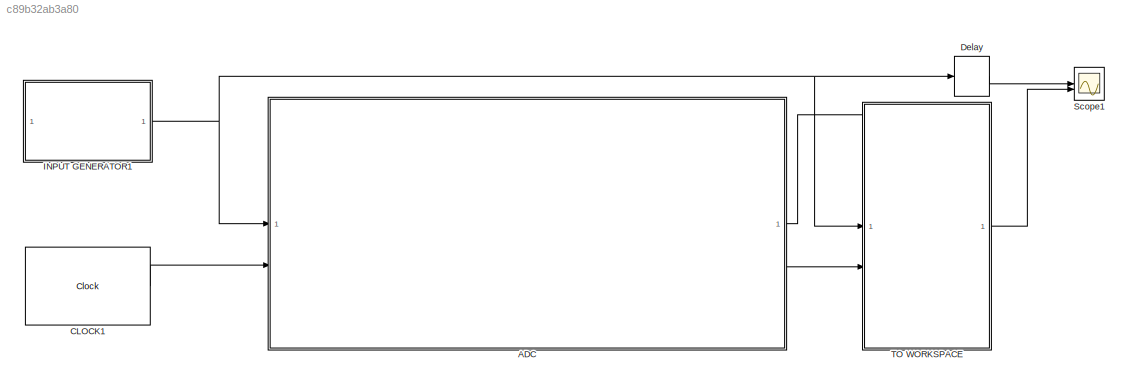
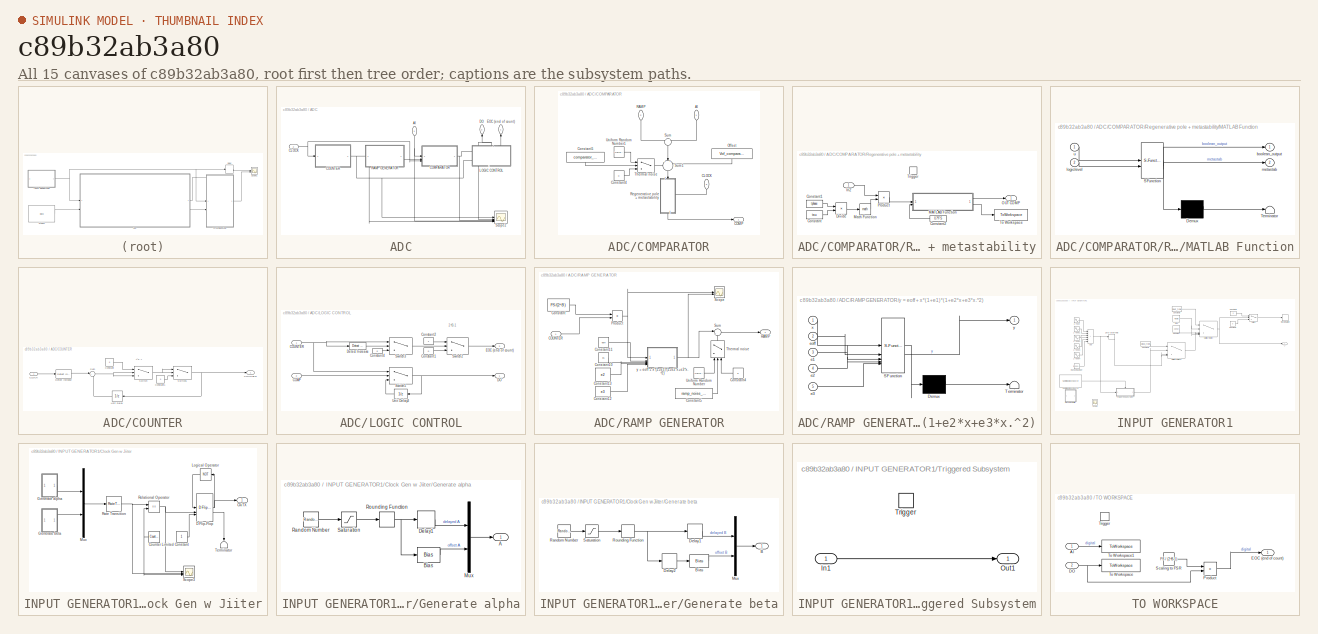
[diagram: thumbnail index - all 15 canvases of the model, root first then tree order]
MODEL slx_c89b32ab3a80
KIND model
CONFIG AbsTol = auto
CONFIG EnableMultiTasking = off
CONFIG FixedStep = (1/fclk)/OSR
CONFIG MaxStep = auto
CONFIG MinStep = auto
CONFIG RelTol = 1e-12
CONFIG SampleTimeConstraint = Unconstrained
CONFIG SolverName = VariableStepAuto
CONFIG StartTime = 0.0
CONFIG StopTime = simtime
WORKSPACE source: mxarray member
WORKSPACE Delay_242 = [0 0 0]
WORKSPACE ENOB_242 = -inf
WORKSPACE FUNDF_242 = [nan nan]
WORKSPACE FUNDX_242 = [-inf -inf]
WORKSPACE GainError_249 = [1.75 0.02734375 2.734375]
WORKSPACE IMODF_242 = [nan nan]
WORKSPACE IMODX_242 = [nan nan]
WORKSPACE NoiseFloor_242 = -54.2607794062
WORKSPACE OIP3_242 = nan
WORKSPACE OffsetError_249 = [0.74921875 0.0117065429687 1.17065429687]
WORKSPACE SFDR_242 = inf
WORKSPACE SINAD_242 = -inf
WORKSPACE SNR_242 = -inf
WORKSPACE THD_242 = nan
WORKSPACE best_linear_fit_249 = [0.0225228416502 0.00504547332987]
WORKSPACE bf_dnl_249 = [0.503760731487 -0.129615618295 -0.129615618295 0.0703843817053 -0.0296156182947 -0.279615618295 0.220384381705 -0.129615618295 -0.0296156182947 0.220384381705 -0.0796156182947 -0.129615618295 ... (64 elements, 1x64)]
WORKSPACE bf_inl_249 = [0 0.503760731487 0.374145113192 0.244529494898 0.314913876603 0.285298258308 0.00568264001369 0.226067021719 0.0964514034243 0.0668357851297 0.287220166835 0.20760454854 ... (64 elements, 1x64)]
WORKSPACE delay_242 = [0 0 0]
WORKSPACE ep_dnl_249 = [-8.24737104007e-15 -0.128225806452 -0.128225806452 0.0717741935484 -0.0282258064516 -0.278225806452 0.221774193548 -0.128225806452 -0.0282258064516 0.221774193548 -0.0782258064516 -0.128225806452 ... (64 elements, 1x64)]
WORKSPACE ep_inl_249 = [0 -8.24737104007e-15 -0.128225806452 -0.256451612903 -0.184677419355 -0.212903225806 -0.491129032258 -0.26935483871 -0.397580645161 -0.425806451613 -0.204032258065 -0.282258064516 ... (64 elements, 1x64)]
WORKSPACE nbits_249 = 6
WORKSPACE tcr_249: object (value not decoded)
WORKSPACE v_high_249 = 1.4
WORKSPACE v_low_249 = 0
BLOCK [SubSystem] ADC
BLOCK [Inport] ADC/AI
  NameLocation = left
BLOCK [Inport] ADC/CLOCK
  Port = 2
BLOCK [SubSystem] ADC/COMPARATOR
BLOCK [Inport] ADC/COMPARATOR/AI
  NameLocation = left
BLOCK [Inport] ADC/COMPARATOR/CLOCK
  NameLocation = left
  Port = 3
BLOCK [Outport] ADC/COMPARATOR/COMP
BLOCK [Constant] ADC/COMPARATOR/Constant4
  Value = 0
BLOCK [Constant] ADC/COMPARATOR/Constant5
  NameLocation = left
  Value = comparator_noise_state
BLOCK [Constant] ADC/COMPARATOR/Offset
  NameLocation = top
  Value = Vof_comparator
BLOCK [Inport] ADC/COMPARATOR/RAMP
  NameLocation = left
  Port = 2
BLOCK [SubSystem] ADC/COMPARATOR/Regenerative pole + metastability
  NameLocation = left
  TreatAsAtomicUnit = on
BLOCK [Constant] ADC/COMPARATOR/Regenerative pole + metastability/Constant
  Value = tau
BLOCK [Constant] ADC/COMPARATOR/Regenerative pole + metastability/Constant1
  Value = tphase
BLOCK [Constant] ADC/COMPARATOR/Regenerative pole + metastability/Constant2
  NameLocation = top
  Value = 0.7*FS
BLOCK [Product] ADC/COMPARATOR/Regenerative pole + metastability/Divide
  Inputs = */
BLOCK [Inport] ADC/COMPARATOR/Regenerative pole + metastability/In2
BLOCK [SubSystem] ADC/COMPARATOR/Regenerative pole + metastability/MATLAB Function
  ErrorFcn = Stateflow.Translate.translate
  PermitHierarchicalResolution = ExplicitOnly
  SFBlockType = MATLAB Function
  TreatAsAtomicUnit = on
BLOCK [Demux] ADC/COMPARATOR/Regenerative pole + metastability/MATLAB Function/ Demux 
  Outputs = 1
BLOCK [S-Function] ADC/COMPARATOR/Regenerative pole + metastability/MATLAB Function/ SFunction 
  EnableBusSupport = on
  FunctionName = sf_sfun
  PortCounts = [2 3]
  SFcnIsStateOwnerBlock = off
  SFunctionDeploymentMode = off
  Tag = Stateflow S-Function 1
BLOCK [Terminator] ADC/COMPARATOR/Regenerative pole + metastability/MATLAB Function/ Terminator 
BLOCK [Outport] ADC/COMPARATOR/Regenerative pole + metastability/MATLAB Function/boolean_output
BLOCK [Inport] ADC/COMPARATOR/Regenerative pole + metastability/MATLAB Function/logiclevel
  Port = 2
BLOCK [Outport] ADC/COMPARATOR/Regenerative pole + metastability/MATLAB Function/metastab
  Port = 2
BLOCK [Inport] ADC/COMPARATOR/Regenerative pole + metastability/MATLAB Function/u
BLOCK [Math] ADC/COMPARATOR/Regenerative pole + metastability/Math Function
BLOCK [Outport] ADC/COMPARATOR/Regenerative pole + metastability/OUT COMP
BLOCK [Product] ADC/COMPARATOR/Regenerative pole + metastability/Product
BLOCK [ToWorkspace] ADC/COMPARATOR/Regenerative pole + metastability/To Workspace
  FixptAsFi = on
  MaxDataPoints = inf
  SampleTime = -1
  VariableName = metastab
BLOCK [TriggerPort] ADC/COMPARATOR/Regenerative pole + metastability/Trigger
  StatesWhenEnabling = held
  VariantControl = (inherit)
BLOCK [Sum] ADC/COMPARATOR/Sum
  Inputs = +|-
  NameLocation = left
BLOCK [Sum] ADC/COMPARATOR/Sum1
  Inputs = +|+|+
  NameLocation = left
BLOCK [Switch] ADC/COMPARATOR/Thermal noise
  Criteria = u2 > Threshold
  InputSameDT = off
  SaturateOnIntegerOverflow = off
BLOCK [UniformRandomNumber] ADC/COMPARATOR/Uniform Random Number1
  Maximum = Vnoise_comparator
  Minimum = -Vnoise_comparator
  SampleTime = 1/(2*fclk)
  Seed = SEED2
BLOCK [SubSystem] ADC/COUNTER
BLOCK [Inport] ADC/COUNTER/CLOCK
BLOCK [Outport] ADC/COUNTER/COUNTER
BLOCK [Constant] ADC/COUNTER/Constant
  Value = 0
BLOCK [Constant] ADC/COUNTER/Constant1
  Value = 0
BLOCK [Reference] ADC/COUNTER/Detect Increase  REF=simulink/Logic and Bit
Operations/Detect
Increase
  SourceBlock = simulink/Logic and Bit\nOperations/Detect\nIncrease
  SourceType = Detect Increase
BLOCK [Sum] ADC/COUNTER/Sum
  Inputs = |++
BLOCK [Switch] ADC/COUNTER/Switch
  Criteria = u2 > Threshold
  InputSameDT = off
  SaturateOnIntegerOverflow = off
  Threshold = 2^B-1
BLOCK [Switch] ADC/COUNTER/Switch1
  InputSameDT = off
  SaturateOnIntegerOverflow = off
BLOCK [UnitDelay] ADC/COUNTER/Unit Delay
  HasFrameUpgradeWarning = on
  InitialCondition = -1
  SampleTime = -1
BLOCK [Outport] ADC/DO
  NameLocation = right
  Port = 2
BLOCK [Outport] ADC/EOC (end of count)
  NameLocation = right
BLOCK [SubSystem] ADC/LOGIC CONTROL
  PortSchema = {"entries":[{"content":{"sides":[{"content":{},"type":"ConnectorPlacement.EquallySpacedRectSide","uuid":"4dac15f4-60b2-47ff-be01-608d4a6ba830"},{"content":{"connectorIds":["Out1","Out2"],"side":"RIGHT"},"type":"ConnectorPlacement.EquallySpacedRectSide","uuid":"a37273df-03c3-4eb4-bc46-6efba4b33bab"},{"content":{"connectorIds":["In1","In2"],"side":"TOP"},"type":"ConnectorPlacement.EquallySpacedRectS...<+236ch>
BLOCK [Inport] ADC/LOGIC CONTROL/COMP
  Port = 2
BLOCK [Inport] ADC/LOGIC CONTROL/COUNTER
BLOCK [Constant] ADC/LOGIC CONTROL/Constant1
  Value = 0
BLOCK [Constant] ADC/LOGIC CONTROL/Constant2
BLOCK [Constant] ADC/LOGIC CONTROL/Constant4
  Value = 0
BLOCK [Outport] ADC/LOGIC CONTROL/DO
BLOCK [Reference] ADC/LOGIC CONTROL/Detect Increase  REF=simulink/Logic and Bit
Operations/Detect
Increase
  SourceBlock = simulink/Logic and Bit\nOperations/Detect\nIncrease
  SourceType = Detect Increase
BLOCK [Outport] ADC/LOGIC CONTROL/EOC (end of count)
  Port = 2
BLOCK [Switch] ADC/LOGIC CONTROL/Switch2
  Criteria = u2 > Threshold
  InputSameDT = off
  SaturateOnIntegerOverflow = off
  Threshold = 2^B-2
BLOCK [Switch] ADC/LOGIC CONTROL/Switch3
  Criteria = u2 > Threshold
  InputSameDT = off
  SaturateOnIntegerOverflow = off
BLOCK [Switch] ADC/LOGIC CONTROL/Switch5
  Criteria = u2 ~= 0
  InputSameDT = off
  SaturateOnIntegerOverflow = off
BLOCK [UnitDelay] ADC/LOGIC CONTROL/Unit Delay3
  HasFrameUpgradeWarning = on
  SampleTime = -1
BLOCK [SubSystem] ADC/RAMP GENERATOR
BLOCK [Inport] ADC/RAMP GENERATOR/COUNTER
BLOCK [Constant] ADC/RAMP GENERATOR/Constant
  Value = FS/(2^B)
BLOCK [Constant] ADC/RAMP GENERATOR/Constant10
  Value = e1
BLOCK [Constant] ADC/RAMP GENERATOR/Constant11
  Value = eoff
BLOCK [Constant] ADC/RAMP GENERATOR/Constant12
  Value = e3
BLOCK [Constant] ADC/RAMP GENERATOR/Constant13
  Value = e2
BLOCK [Constant] ADC/RAMP GENERATOR/Constant4
  NameLocation = top
  Value = 0
BLOCK [Constant] ADC/RAMP GENERATOR/Constant5
  Value = ramp_noise_state
BLOCK [Product] ADC/RAMP GENERATOR/Product
BLOCK [Outport] ADC/RAMP GENERATOR/RAMP
BLOCK [Scope] ADC/RAMP GENERATOR/Scope
  Commented = on
  Floating = off
  NumInputPorts = 2
  ScopeSpecificationString = Simulink.scopes.TimeScopeBlockCfg('CurrentConfiguration', extmgr.ConfigurationSet(extmgr.Configuration('Core','General UI',true,'FigureColor',[1 1 1]),extmgr.Configuration('Core','Source UI',true),extmgr.Configuration('Sources','WiredSimulink',true,'DataLoggingVariableName','ScopeData1'),extmgr.Configuration('Visuals','Time Domain',true,'SerializedDisplays',{struct('MinYLimReal','-0.0162','MaxYLim...<+1847ch>
BLOCK [Sum] ADC/RAMP GENERATOR/Sum
  Inputs = |++
BLOCK [Switch] ADC/RAMP GENERATOR/Thermal noise
  Criteria = u2 > Threshold
  InputSameDT = off
  NameLocation = right
  SaturateOnIntegerOverflow = off
BLOCK [UniformRandomNumber] ADC/RAMP GENERATOR/Uniform Random Number
  Maximum = Vnoise_ramp
  Minimum = -Vnoise_ramp
  SampleTime = 1/(2*fclk)
  Seed = SEED1
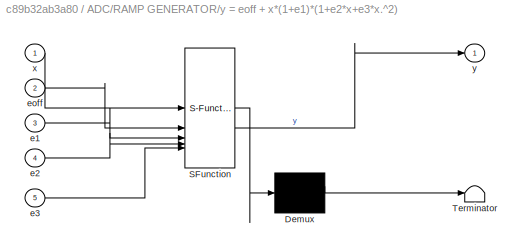
BLOCK [SubSystem] ADC/RAMP GENERATOR/y = eoff + x*(1+e1)*(1+e2*x+e3*x.^2)
  ErrorFcn = Stateflow.Translate.translate
  PermitHierarchicalResolution = ExplicitOnly
  SFBlockType = MATLAB Function
BLOCK [Demux] ADC/RAMP GENERATOR/y = eoff + x*(1+e1)*(1+e2*x+e3*x.^2)/ Demux 
  Outputs = 1
BLOCK [S-Function] ADC/RAMP GENERATOR/y = eoff + x*(1+e1)*(1+e2*x+e3*x.^2)/ SFunction 
  EnableBusSupport = on
  FunctionName = sf_sfun
  PortCounts = [5 2]
  SFcnIsStateOwnerBlock = off
  SFunctionDeploymentMode = off
  Tag = Stateflow S-Function 2
BLOCK [Terminator] ADC/RAMP GENERATOR/y = eoff + x*(1+e1)*(1+e2*x+e3*x.^2)/ Terminator 
BLOCK [Inport] ADC/RAMP GENERATOR/y = eoff + x*(1+e1)*(1+e2*x+e3*x.^2)/e1
  Port = 3
BLOCK [Inport] ADC/RAMP GENERATOR/y = eoff + x*(1+e1)*(1+e2*x+e3*x.^2)/e2
  Port = 4
BLOCK [Inport] ADC/RAMP GENERATOR/y = eoff + x*(1+e1)*(1+e2*x+e3*x.^2)/e3
  Port = 5
BLOCK [Inport] ADC/RAMP GENERATOR/y = eoff + x*(1+e1)*(1+e2*x+e3*x.^2)/eoff
  Port = 2
BLOCK [Inport] ADC/RAMP GENERATOR/y = eoff + x*(1+e1)*(1+e2*x+e3*x.^2)/x
BLOCK [Outport] ADC/RAMP GENERATOR/y = eoff + x*(1+e1)*(1+e2*x+e3*x.^2)/y
BLOCK [Scope] ADC/Scope2
  Commented = on
  Floating = off
  NumInputPorts = 5
  ScopeSpecificationString = Simulink.scopes.TimeScopeBlockCfg('CurrentConfiguration', extmgr.ConfigurationSet(extmgr.Configuration('Core','General UI',true,'FigureColor',[1 1 1]),extmgr.Configuration('Core','Source UI',true),extmgr.Configuration('Sources','WiredSimulink',true,'DataLoggingVariableName','ScopeData1'),extmgr.Configuration('Visuals','Time Domain',true,'PlotType','Stairs','SerializedDisplays',{struct('MinYLimReal...<+4341ch>
BLOCK [Reference] CLOCK1  REF=simulink_extras/Flip Flops/Clock
  SourceBlock = simulink_extras/Flip Flops/Clock
  SourceType = Digital clock
BLOCK [Delay] Delay
  DelayLength = 2^B-1
  InitialCondition = 0
  InputPortMap = u0
  SampleTime = 1/fclk
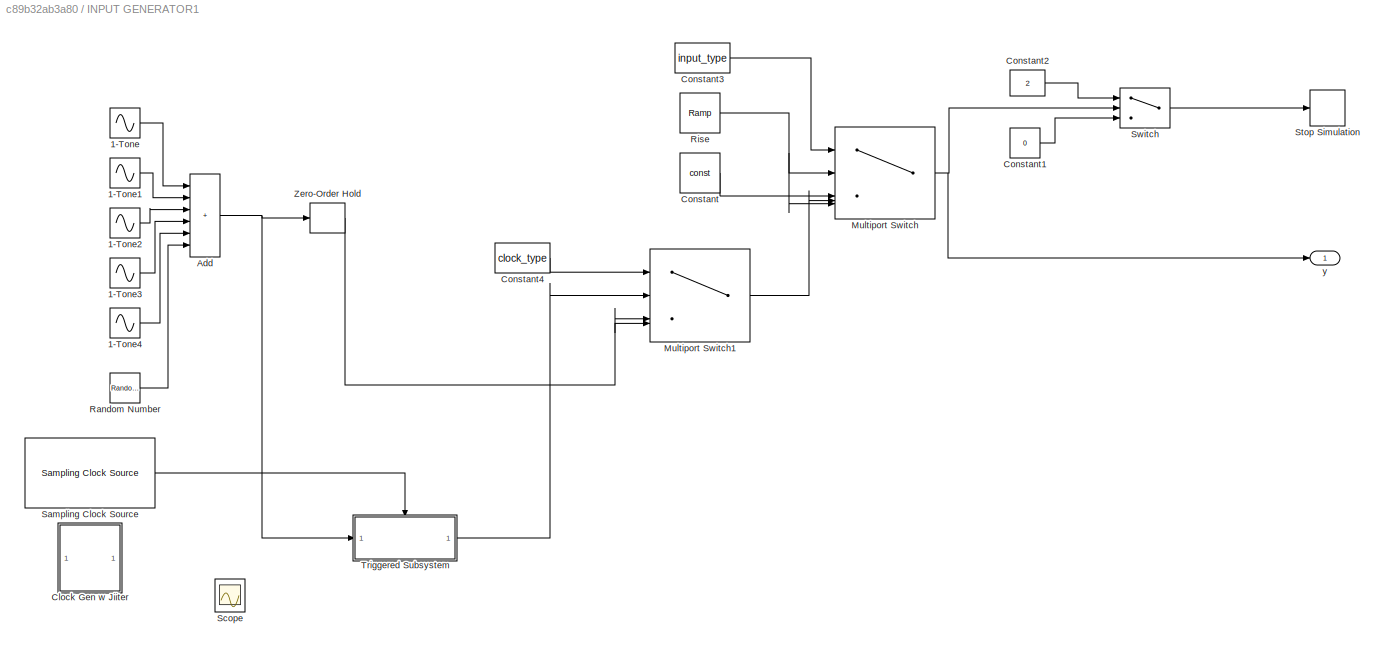
BLOCK [SubSystem] INPUT GENERATOR1
BLOCK [Sin] INPUT GENERATOR1/1-Tone
  Amplitude = Ain
  Bias = FS/2
  Frequency = 2 * pi * fin
  SampleTime = 0
BLOCK [Sin] INPUT GENERATOR1/1-Tone1
  Amplitude = Ah2
  Frequency = 2 * pi * 2*fin
  Phase = 2*pi*randn
  SampleTime = 0
BLOCK [Sin] INPUT GENERATOR1/1-Tone2
  Amplitude = Ah3
  Frequency = 2 * pi * 3*fin
  Phase = 2*pi*randn
  SampleTime = 0
BLOCK [Sin] INPUT GENERATOR1/1-Tone3
  Amplitude = Ah4
  Frequency = 2 * pi * 4*fin
  Phase = 2*pi*randn
  SampleTime = 0
BLOCK [Sin] INPUT GENERATOR1/1-Tone4
  Amplitude = Ah5
  Frequency = 2 * pi * 5*fin
  Phase = 2*pi*randn
  SampleTime = 0
BLOCK [Sum] INPUT GENERATOR1/Add
  IconShape = rectangular
  Inputs = ++++++
BLOCK [SubSystem] INPUT GENERATOR1/Clock Gen w Jiiter
  Commented = on
BLOCK [Outport] INPUT GENERATOR1/Clock Gen w Jiiter/ClkTX
BLOCK [Constant] INPUT GENERATOR1/Clock Gen w Jiiter/Constant
BLOCK [Reference] INPUT GENERATOR1/Clock Gen w Jiiter/Counter Limited  REF=simulink/Sources/Counter
Limited
  SourceBlock = simulink/Sources/Counter\nLimited
  SourceType = Counter Limited
BLOCK [Reference] INPUT GENERATOR1/Clock Gen w Jiiter/D Flip-Flop  REF=simulink_extras/Flip Flops/D Flip-Flop
  SourceBlock = simulink_extras/Flip Flops/D Flip-Flop
  SourceType = DFlipFlop
BLOCK [SubSystem] INPUT GENERATOR1/Clock Gen w Jiiter/Generate alpha
BLOCK [Outport] INPUT GENERATOR1/Clock Gen w Jiiter/Generate alpha/A
BLOCK [Bias] INPUT GENERATOR1/Clock Gen w Jiiter/Generate alpha/Bias
  Bias = OSR
  SaturateOnIntegerOverflow = off
BLOCK [Delay] INPUT GENERATOR1/Clock Gen w Jiiter/Generate alpha/Delay1
  DelayLength = 1
  InputPortMap = u0
  SampleTime = Ts
BLOCK [Mux] INPUT GENERATOR1/Clock Gen w Jiiter/Generate alpha/Mux
  DisplayOption = bar
  Inputs = 2
BLOCK [RandomNumber] INPUT GENERATOR1/Clock Gen w Jiiter/Generate alpha/Random Number
  Mean = mean_alpha*OSR
  SampleTime = Ts
  Seed = SEED1
  Variance = (sigma_alpha/Ts)*OSR
BLOCK [Rounding] INPUT GENERATOR1/Clock Gen w Jiiter/Generate alpha/Rounding Function
  Operator = round
BLOCK [Saturate] INPUT GENERATOR1/Clock Gen w Jiiter/Generate alpha/Saturation
  LowerLimit = (mean_alpha-2*sigma_alpha/Ts)*OSR
  UpperLimit = (mean_alpha+2*sigma_alpha/Ts)*OSR
BLOCK [SubSystem] INPUT GENERATOR1/Clock Gen w Jiiter/Generate beta
BLOCK [Outport] INPUT GENERATOR1/Clock Gen w Jiiter/Generate beta/B
BLOCK [Bias] INPUT GENERATOR1/Clock Gen w Jiiter/Generate beta/Bias
  Bias = -OSR
  SaturateOnIntegerOverflow = off
BLOCK [Delay] INPUT GENERATOR1/Clock Gen w Jiiter/Generate beta/Delay1
  DelayLength = 1
  InputPortMap = u0
  SampleTime = Ts
BLOCK [Delay] INPUT GENERATOR1/Clock Gen w Jiiter/Generate beta/Delay2
  InputPortMap = u0
  SampleTime = Ts
BLOCK [Mux] INPUT GENERATOR1/Clock Gen w Jiiter/Generate beta/Mux
  DisplayOption = bar
  Inputs = 2
BLOCK [RandomNumber] INPUT GENERATOR1/Clock Gen w Jiiter/Generate beta/Random Number
  Mean = mean_beta*OSR
  SampleTime = Ts
  Seed = 2342
  Variance = sigma_beta/Ts*OSR
BLOCK [Rounding] INPUT GENERATOR1/Clock Gen w Jiiter/Generate beta/Rounding Function
  Operator = round
BLOCK [Saturate] INPUT GENERATOR1/Clock Gen w Jiiter/Generate beta/Saturation
  LowerLimit = (mean_beta-2*sigma_beta/Ts)*OSR
  UpperLimit = (mean_beta+2*sigma_beta/Ts)*OSR
BLOCK [Logic] INPUT GENERATOR1/Clock Gen w Jiiter/Logical Operator
  AllPortsSameDT = off
  Inputs = 1
  NameLocation = top
  Operator = NOT
  OutDataTypeStr = boolean
BLOCK [Mux] INPUT GENERATOR1/Clock Gen w Jiiter/Mux
  DisplayOption = bar
  Inputs = 2
BLOCK [RateTransition] INPUT GENERATOR1/Clock Gen w Jiiter/Rate Transition
  OutPortSampleTime = Ts/OSR
BLOCK [RelationalOperator] INPUT GENERATOR1/Clock Gen w Jiiter/Relational Operator
  InputSameDT = off
  Operator = ==
  OutDataTypeStr = boolean
  RndMeth = Simplest
BLOCK [Scope] INPUT GENERATOR1/Clock Gen w Jiiter/Scope3
  Commented = on
  Floating = off
  NumInputPorts = 3
  ScopeSpecificationString = Simulink.scopes.TimeScopeBlockCfg('CurrentConfiguration', extmgr.ConfigurationSet(extmgr.Configuration('Core','General UI',true),extmgr.Configuration('Core','Source UI',true),extmgr.Configuration('Sources','WiredSimulink',true,'DataLoggingVariableName','ScopeData4'),extmgr.Configuration('Visuals','Time Domain',true,'SerializedDisplays',{struct('MinYLimReal','-83.625','MaxYLimReal','112.625','YLabe...<+1631ch>
BLOCK [Terminator] INPUT GENERATOR1/Clock Gen w Jiiter/Terminator
  NameLocation = left
BLOCK [Constant] INPUT GENERATOR1/Constant
  Value = const
BLOCK [Constant] INPUT GENERATOR1/Constant1
  Value = 0
BLOCK [Constant] INPUT GENERATOR1/Constant2
  Value = 2
BLOCK [Constant] INPUT GENERATOR1/Constant3
  Value = input_type
BLOCK [Constant] INPUT GENERATOR1/Constant4
  Value = clock_type
BLOCK [MultiPortSwitch] INPUT GENERATOR1/Multiport Switch
  DataPortForDefault = Additional data port
  DiagnosticForDefault = None
  InputSameDT = off
  SaturateOnIntegerOverflow = off
BLOCK [MultiPortSwitch] INPUT GENERATOR1/Multiport Switch1
  DataPortForDefault = Additional data port
  DiagnosticForDefault = None
  InputSameDT = off
  Inputs = 2
  SaturateOnIntegerOverflow = off
BLOCK [RandomNumber] INPUT GENERATOR1/Random Number
  SampleTime = 0
  Variance = noise_Vrms^2
BLOCK [Reference] INPUT GENERATOR1/Rise  REF=simulink/Sources/Ramp
  SourceBlock = simulink/Sources/Ramp
  SourceType = Ramp
BLOCK [Reference] INPUT GENERATOR1/Sampling Clock Source  REF=msbAdcFoundation/Sampling Clock Source
  SourceBlock = msbAdcFoundation/Sampling Clock Source
  SourceType = SamplingClockSource
BLOCK [Scope] INPUT GENERATOR1/Scope
  Commented = on
  Floating = off
  NumInputPorts = 2
  ScopeSpecificationString = Simulink.scopes.TimeScopeBlockCfg('CurrentConfiguration', extmgr.ConfigurationSet(extmgr.Configuration('Core','General UI',true),extmgr.Configuration('Core','Source UI',true),extmgr.Configuration('Sources','WiredSimulink',true,'DataLoggingVariableName','ScopeData2'),extmgr.Configuration('Visuals','Time Domain',true,'SerializedDisplays',{struct('MinYLimReal','-0.125','MaxYLimReal','1.125','YLabelRe...<+2120ch>
BLOCK [Stop] INPUT GENERATOR1/Stop Simulation
BLOCK [Switch] INPUT GENERATOR1/Switch
  Criteria = u2 > Threshold
  InputSameDT = off
  SaturateOnIntegerOverflow = off
  Threshold = final_value
BLOCK [SubSystem] INPUT GENERATOR1/Triggered Subsystem
  TreatAsAtomicUnit = on
BLOCK [Inport] INPUT GENERATOR1/Triggered Subsystem/In1
BLOCK [Outport] INPUT GENERATOR1/Triggered Subsystem/Out1
BLOCK [TriggerPort] INPUT GENERATOR1/Triggered Subsystem/Trigger
  StatesWhenEnabling = held
  VariantControl = (inherit)
BLOCK [ZeroOrderHold] INPUT GENERATOR1/Zero-Order Hold
  SampleTime = 1/fs
BLOCK [Outport] INPUT GENERATOR1/y
BLOCK [Scope] Scope1
  Commented = on
  Floating = off
  NumInputPorts = 2
  ScopeSpecificationString = Simulink.scopes.TimeScopeBlockCfg('CurrentConfiguration', extmgr.ConfigurationSet(extmgr.Configuration('Core','General UI',true),extmgr.Configuration('Core','Source UI',true),extmgr.Configuration('Sources','WiredSimulink',true,'DataLoggingVariableName','ScopeData1'),extmgr.Configuration('Visuals','Time Domain',true,'SerializedDisplays',{struct('MinYLimReal','-0.01161','MaxYLimReal','1.01607','YLab...<+2016ch>
BLOCK [SubSystem] TO WORKSPACE
BLOCK [Inport] TO WORKSPACE/AI
BLOCK [Inport] TO WORKSPACE/DO
  Port = 2
BLOCK [Outport] TO WORKSPACE/EOC (end of count)
BLOCK [Product] TO WORKSPACE/Product
BLOCK [Constant] TO WORKSPACE/Scaling to FSR
  Value = FS / (2^B-1)
BLOCK [ToWorkspace] TO WORKSPACE/To Workspace
  FixptAsFi = on
  MaxDataPoints = inf
  SampleTime = -1
  Save2DSignal = 2-D array (concatenate along first dimension)
  SaveFormat = Structure With Time
  VariableName = do
BLOCK [ToWorkspace] TO WORKSPACE/To Workspace1
  FixptAsFi = on
  MaxDataPoints = inf
  SampleTime = -1
  Save2DSignal = 2-D array (concatenate along first dimension)
  SaveFormat = Structure
  VariableName = ai
BLOCK [TriggerPort] TO WORKSPACE/Trigger
  PortDimensions = 1
  StatesWhenEnabling = held
  VariantControl = Variant
  ZeroCross = off
ANNOTATION ADC/COUNTER: 2^B-1
ANNOTATION ADC/LOGIC CONTROL: 2^B-1
NET ADC/AI:1 -> ADC/COMPARATOR:1, ADC/Scope2:4
NET ADC/CLOCK:1 -> ADC/COMPARATOR:3, ADC/COUNTER:1
LINE ADC/COMPARATOR/AI:1 -> ADC/COMPARATOR/Sum:2
LINE ADC/COMPARATOR/CLOCK:1 -> ADC/COMPARATOR/Regenerative pole + metastability:trigger
LINE ADC/COMPARATOR/Constant4:1 -> ADC/COMPARATOR/Thermal noise:3
LINE ADC/COMPARATOR/Constant5:1 -> ADC/COMPARATOR/Thermal noise:2
LINE ADC/COMPARATOR/Offset:1 -> ADC/COMPARATOR/Sum1:3
LINE ADC/COMPARATOR/RAMP:1 -> ADC/COMPARATOR/Sum:1
LINE ADC/COMPARATOR/Regenerative pole + metastability/Constant1:1 -> ADC/COMPARATOR/Regenerative pole + metastability/Divide:1
LINE ADC/COMPARATOR/Regenerative pole + metastability/Constant2:1 -> ADC/COMPARATOR/Regenerative pole + metastability/MATLAB Function:2
LINE ADC/COMPARATOR/Regenerative pole + metastability/Constant:1 -> ADC/COMPARATOR/Regenerative pole + metastability/Divide:2
LINE ADC/COMPARATOR/Regenerative pole + metastability/Divide:1 -> ADC/COMPARATOR/Regenerative pole + metastability/Math Function:1
LINE ADC/COMPARATOR/Regenerative pole + metastability/In2:1 -> ADC/COMPARATOR/Regenerative pole + metastability/Product:1
LINE ADC/COMPARATOR/Regenerative pole + metastability/MATLAB Function:1 -> ADC/COMPARATOR/Regenerative pole + metastability/OUT COMP:1
LINE ADC/COMPARATOR/Regenerative pole + metastability/MATLAB Function:2 -> ADC/COMPARATOR/Regenerative pole + metastability/To Workspace:1
LINE ADC/COMPARATOR/Regenerative pole + metastability/Math Function:1 -> ADC/COMPARATOR/Regenerative pole + metastability/Product:2
LINE ADC/COMPARATOR/Regenerative pole + metastability/Product:1 -> ADC/COMPARATOR/Regenerative pole + metastability/MATLAB Function:1
LINE ADC/COMPARATOR/Regenerative pole + metastability:1 -> ADC/COMPARATOR/COMP:1
LINE ADC/COMPARATOR/Sum1:1 -> ADC/COMPARATOR/Regenerative pole + metastability:1
LINE ADC/COMPARATOR/Sum:1 -> ADC/COMPARATOR/Sum1:2
LINE ADC/COMPARATOR/Thermal noise:1 -> ADC/COMPARATOR/Sum1:1
LINE ADC/COMPARATOR/Uniform Random Number1:1 -> ADC/COMPARATOR/Thermal noise:1
NET ADC/COMPARATOR:1 -> ADC/LOGIC CONTROL:2, ADC/Scope2:3
LINE ADC/COUNTER/CLOCK:1 -> ADC/COUNTER/Detect Increase:1
LINE ADC/COUNTER/Constant1:1 -> ADC/COUNTER/Switch1:3
LINE ADC/COUNTER/Constant:1 -> ADC/COUNTER/Switch:1
LINE ADC/COUNTER/Detect Increase:1 -> ADC/COUNTER/Sum:1
NET ADC/COUNTER/Sum:1 -> ADC/COUNTER/Switch:2, ADC/COUNTER/Switch:3
NET ADC/COUNTER/Switch1:1 -> ADC/COUNTER/COUNTER:1, ADC/COUNTER/Unit Delay:1
NET ADC/COUNTER/Switch:1 -> ADC/COUNTER/Switch1:1, ADC/COUNTER/Switch1:2
LINE ADC/COUNTER/Unit Delay:1 -> ADC/COUNTER/Sum:2
NET ADC/COUNTER:1 -> ADC/LOGIC CONTROL:1, ADC/RAMP GENERATOR:1, ADC/Scope2:1
LINE ADC/LOGIC CONTROL/COMP:1 -> ADC/LOGIC CONTROL/Switch5:2
NET ADC/LOGIC CONTROL/COUNTER:1 -> ADC/LOGIC CONTROL/Detect Increase:1, ADC/LOGIC CONTROL/Switch3:1, ADC/LOGIC CONTROL/Switch5:1
LINE ADC/LOGIC CONTROL/Constant1:1 -> ADC/LOGIC CONTROL/Switch2:3
LINE ADC/LOGIC CONTROL/Constant2:1 -> ADC/LOGIC CONTROL/Switch2:1
LINE ADC/LOGIC CONTROL/Constant4:1 -> ADC/LOGIC CONTROL/Switch3:3
LINE ADC/LOGIC CONTROL/Detect Increase:1 -> ADC/LOGIC CONTROL/Switch3:2
LINE ADC/LOGIC CONTROL/Switch2:1 -> ADC/LOGIC CONTROL/EOC (end of count):1
LINE ADC/LOGIC CONTROL/Switch3:1 -> ADC/LOGIC CONTROL/Switch2:2
NET ADC/LOGIC CONTROL/Switch5:1 -> ADC/LOGIC CONTROL/DO:1, ADC/LOGIC CONTROL/Unit Delay3:1
LINE ADC/LOGIC CONTROL/Unit Delay3:1 -> ADC/LOGIC CONTROL/Switch5:3
NET ADC/LOGIC CONTROL:1 -> ADC/DO:1, ADC/Scope2:2
LINE ADC/LOGIC CONTROL:2 -> ADC/EOC (end of count):1
LINE ADC/RAMP GENERATOR/COUNTER:1 -> ADC/RAMP GENERATOR/Product:2
LINE ADC/RAMP GENERATOR/Constant10:1 -> ADC/RAMP GENERATOR/y = eoff + x*(1+e1)*(1+e2*x+e3*x.^2):3
LINE ADC/RAMP GENERATOR/Constant11:1 -> ADC/RAMP GENERATOR/y = eoff + x*(1+e1)*(1+e2*x+e3*x.^2):2
LINE ADC/RAMP GENERATOR/Constant12:1 -> ADC/RAMP GENERATOR/y = eoff + x*(1+e1)*(1+e2*x+e3*x.^2):5
LINE ADC/RAMP GENERATOR/Constant13:1 -> ADC/RAMP GENERATOR/y = eoff + x*(1+e1)*(1+e2*x+e3*x.^2):4
LINE ADC/RAMP GENERATOR/Constant4:1 -> ADC/RAMP GENERATOR/Thermal noise:3
LINE ADC/RAMP GENERATOR/Constant5:1 -> ADC/RAMP GENERATOR/Thermal noise:2
LINE ADC/RAMP GENERATOR/Constant:1 -> ADC/RAMP GENERATOR/Product:1
NET ADC/RAMP GENERATOR/Product:1 -> ADC/RAMP GENERATOR/Scope:1, ADC/RAMP GENERATOR/y = eoff + x*(1+e1)*(1+e2*x+e3*x.^2):1
LINE ADC/RAMP GENERATOR/Sum:1 -> ADC/RAMP GENERATOR/RAMP:1
LINE ADC/RAMP GENERATOR/Thermal noise:1 -> ADC/RAMP GENERATOR/Sum:2
LINE ADC/RAMP GENERATOR/Uniform Random Number:1 -> ADC/RAMP GENERATOR/Thermal noise:1
NET ADC/RAMP GENERATOR/y = eoff + x*(1+e1)*(1+e2*x+e3*x.^2):1 -> ADC/RAMP GENERATOR/Scope:2, ADC/RAMP GENERATOR/Sum:1
NET ADC/RAMP GENERATOR:1 -> ADC/COMPARATOR:2, ADC/Scope2:5
LINE ADC:1 -> TO WORKSPACE:trigger
LINE ADC:2 -> TO WORKSPACE:2
LINE CLOCK1:1 -> ADC:2
LINE Delay:1 -> Scope1:1
LINE INPUT GENERATOR1/1-Tone1:1 -> INPUT GENERATOR1/Add:2
LINE INPUT GENERATOR1/1-Tone2:1 -> INPUT GENERATOR1/Add:3
LINE INPUT GENERATOR1/1-Tone3:1 -> INPUT GENERATOR1/Add:4
LINE INPUT GENERATOR1/1-Tone4:1 -> INPUT GENERATOR1/Add:5
LINE INPUT GENERATOR1/1-Tone:1 -> INPUT GENERATOR1/Add:1
NET INPUT GENERATOR1/Add:1 -> INPUT GENERATOR1/Triggered Subsystem:1, INPUT GENERATOR1/Zero-Order Hold:1
LINE INPUT GENERATOR1/Clock Gen w Jiiter/Constant:1 -> INPUT GENERATOR1/Clock Gen w Jiiter/D Flip-Flop:3
NET INPUT GENERATOR1/Clock Gen w Jiiter/Counter Limited:1 -> INPUT GENERATOR1/Clock Gen w Jiiter/Relational Operator:2, INPUT GENERATOR1/Clock Gen w Jiiter/Scope3:3
NET INPUT GENERATOR1/Clock Gen w Jiiter/D Flip-Flop:1 -> INPUT GENERATOR1/Clock Gen w Jiiter/ClkTX:1, INPUT GENERATOR1/Clock Gen w Jiiter/Logical Operator:1
LINE INPUT GENERATOR1/Clock Gen w Jiiter/D Flip-Flop:2 -> INPUT GENERATOR1/Clock Gen w Jiiter/Terminator:1
LINE INPUT GENERATOR1/Clock Gen w Jiiter/Generate alpha/Bias:1 -> INPUT GENERATOR1/Clock Gen w Jiiter/Generate alpha/Mux:2
LINE INPUT GENERATOR1/Clock Gen w Jiiter/Generate alpha/Delay1:1 -> INPUT GENERATOR1/Clock Gen w Jiiter/Generate alpha/Mux:1
LINE INPUT GENERATOR1/Clock Gen w Jiiter/Generate alpha/Mux:1 -> INPUT GENERATOR1/Clock Gen w Jiiter/Generate alpha/A:1
LINE INPUT GENERATOR1/Clock Gen w Jiiter/Generate alpha/Random Number:1 -> INPUT GENERATOR1/Clock Gen w Jiiter/Generate alpha/Saturation:1
NET INPUT GENERATOR1/Clock Gen w Jiiter/Generate alpha/Rounding Function:1 -> INPUT GENERATOR1/Clock Gen w Jiiter/Generate alpha/Bias:1, INPUT GENERATOR1/Clock Gen w Jiiter/Generate alpha/Delay1:1
LINE INPUT GENERATOR1/Clock Gen w Jiiter/Generate alpha/Saturation:1 -> INPUT GENERATOR1/Clock Gen w Jiiter/Generate alpha/Rounding Function:1
LINE INPUT GENERATOR1/Clock Gen w Jiiter/Generate alpha:1 -> INPUT GENERATOR1/Clock Gen w Jiiter/Mux:1
LINE INPUT GENERATOR1/Clock Gen w Jiiter/Generate beta/Bias:1 -> INPUT GENERATOR1/Clock Gen w Jiiter/Generate beta/Mux:2
LINE INPUT GENERATOR1/Clock Gen w Jiiter/Generate beta/Delay1:1 -> INPUT GENERATOR1/Clock Gen w Jiiter/Generate beta/Mux:1
LINE INPUT GENERATOR1/Clock Gen w Jiiter/Generate beta/Delay2:1 -> INPUT GENERATOR1/Clock Gen w Jiiter/Generate beta/Bias:1
LINE INPUT GENERATOR1/Clock Gen w Jiiter/Generate beta/Mux:1 -> INPUT GENERATOR1/Clock Gen w Jiiter/Generate beta/B:1
LINE INPUT GENERATOR1/Clock Gen w Jiiter/Generate beta/Random Number:1 -> INPUT GENERATOR1/Clock Gen w Jiiter/Generate beta/Saturation:1
NET INPUT GENERATOR1/Clock Gen w Jiiter/Generate beta/Rounding Function:1 -> INPUT GENERATOR1/Clock Gen w Jiiter/Generate beta/Delay1:1, INPUT GENERATOR1/Clock Gen w Jiiter/Generate beta/Delay2:1
LINE INPUT GENERATOR1/Clock Gen w Jiiter/Generate beta/Saturation:1 -> INPUT GENERATOR1/Clock Gen w Jiiter/Generate beta/Rounding Function:1
LINE INPUT GENERATOR1/Clock Gen w Jiiter/Generate beta:1 -> INPUT GENERATOR1/Clock Gen w Jiiter/Mux:2
LINE INPUT GENERATOR1/Clock Gen w Jiiter/Logical Operator:1 -> INPUT GENERATOR1/Clock Gen w Jiiter/D Flip-Flop:1
LINE INPUT GENERATOR1/Clock Gen w Jiiter/Mux:1 -> INPUT GENERATOR1/Clock Gen w Jiiter/Rate Transition:1
NET INPUT GENERATOR1/Clock Gen w Jiiter/Rate Transition:1 -> INPUT GENERATOR1/Clock Gen w Jiiter/Relational Operator:1, INPUT GENERATOR1/Clock Gen w Jiiter/Scope3:2
NET INPUT GENERATOR1/Clock Gen w Jiiter/Relational Operator:1 -> INPUT GENERATOR1/Clock Gen w Jiiter/D Flip-Flop:2, INPUT GENERATOR1/Clock Gen w Jiiter/Scope3:1
LINE INPUT GENERATOR1/Constant1:1 -> INPUT GENERATOR1/Switch:3
LINE INPUT GENERATOR1/Constant2:1 -> INPUT GENERATOR1/Switch:1
LINE INPUT GENERATOR1/Constant3:1 -> INPUT GENERATOR1/Multiport Switch:1
LINE INPUT GENERATOR1/Constant4:1 -> INPUT GENERATOR1/Multiport Switch1:1
LINE INPUT GENERATOR1/Constant:1 -> INPUT GENERATOR1/Multiport Switch:3
LINE INPUT GENERATOR1/Multiport Switch1:1 -> INPUT GENERATOR1/Multiport Switch:4
NET INPUT GENERATOR1/Multiport Switch:1 -> INPUT GENERATOR1/Switch:2, INPUT GENERATOR1/y:1
LINE INPUT GENERATOR1/Random Number:1 -> INPUT GENERATOR1/Add:6
NET INPUT GENERATOR1/Rise:1 -> INPUT GENERATOR1/Multiport Switch:2, INPUT GENERATOR1/Multiport Switch:5
LINE INPUT GENERATOR1/Sampling Clock Source:1 -> INPUT GENERATOR1/Triggered Subsystem:trigger
LINE INPUT GENERATOR1/Switch:1 -> INPUT GENERATOR1/Stop Simulation:1
LINE INPUT GENERATOR1/Triggered Subsystem/In1:1 -> INPUT GENERATOR1/Triggered Subsystem/Out1:1
LINE INPUT GENERATOR1/Triggered Subsystem:1 -> INPUT GENERATOR1/Multiport Switch1:2
NET INPUT GENERATOR1/Zero-Order Hold:1 -> INPUT GENERATOR1/Multiport Switch1:3, INPUT GENERATOR1/Multiport Switch1:4
NET INPUT GENERATOR1:1 -> ADC:1, Delay:1, TO WORKSPACE:1
LINE TO WORKSPACE/AI:1 -> TO WORKSPACE/To Workspace1:1
NET TO WORKSPACE/DO:1 -> TO WORKSPACE/Product:2, TO WORKSPACE/To Workspace:1
LINE TO WORKSPACE/Product:1 -> TO WORKSPACE/EOC (end of count):1
LINE TO WORKSPACE/Scaling to FSR:1 -> TO WORKSPACE/Product:1
LINE TO WORKSPACE:1 -> Scope1:2
note: NET lines group one-source signal fan-out (src -> all destinations, sorted); 1:1 wires keep LINE
CHART ADC/COMPARATOR/Regenerative pole + metastability/MATLAB Function states=1 transitions=1
  STATE_LABEL 'eML_blk_kernel()'
  STATE_LABEL 'SCRIPT:\nfunction [boolean_output, metastab] = fcn(u, logiclevel)\n\nif u >= logiclevel\n    boolean_output = 0;\n    metastab = 0;\nelseif u <= -logiclevel\n    boolean_output = 1;\n    metastab = 0;\nelse\n    boolean_output = 1;\n    metastab = 1;\nend\n'
CHART ADC/RAMP GENERATOR/y = eoff + x*(1+e1)*(1+e2*x+e3*x.^2) states=1 transitions=1
  STATE_LABEL 'eML_blk_kernel()'
  STATE_LABEL 'SCRIPT:\nfunction y = fcn(x,eoff, e1, e2, e3)\n\ny = eoff + x*(1+e1)*(1+e2*x+e3*x.^2);\n\n\n\n'
CHART  states=0 transitions=0
CHART  states=0 transitions=0
